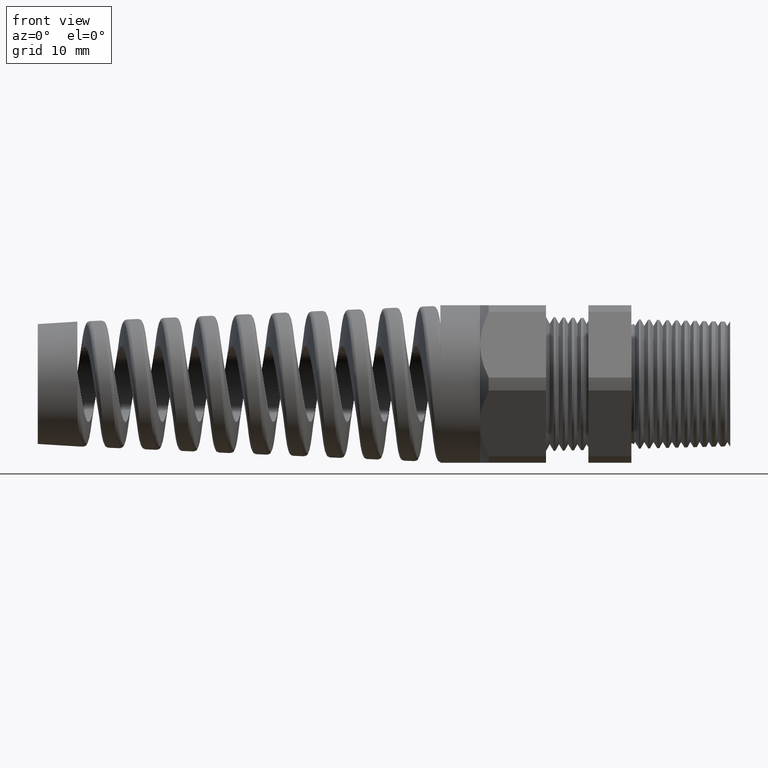
[diagram: clean part render]
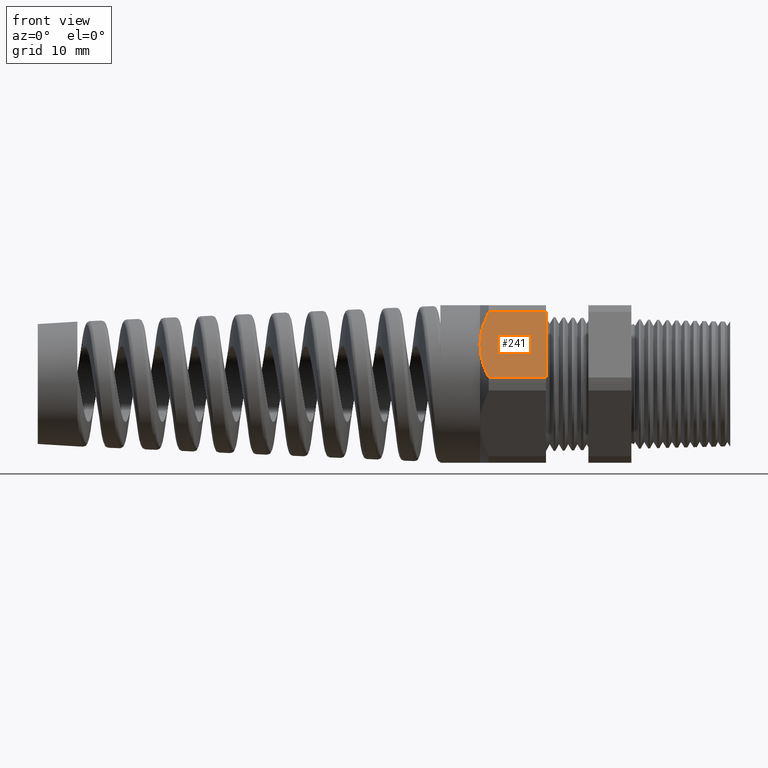
[diagram: same view with one face highlighted and labeled with its STEP entity id]
A machine part, front view. The second image highlights one B-rep face of the part: STEP entity #241.
In plain terms, the highlighted planar face has unit normal (0, -0.866, 0.5).
Its self-contained STEP definition (entity closure, byte-faithful):
#165 = ORIENTED_EDGE ( 'NONE', *, *, #166, .T. ) ;
#166 = EDGE_CURVE ( 'NONE', #249, #335, #1598, .T. ) ;
#167 = ORIENTED_EDGE ( 'NONE', *, *, #449, .F. ) ;
#168 = ORIENTED_EDGE ( 'NONE', *, *, #169, .F. ) ;
#169 = EDGE_CURVE ( 'NONE', #245, #450, #1597, .T. ) ;
#241 = ADVANCED_FACE ( 'NONE', ( #1533 ), #1532, .T. ) ;
#242 = EDGE_LOOP ( 'NONE', ( #243, #247, #165, #167, #168 ) ) ;
#243 = ORIENTED_EDGE ( 'NONE', *, *, #244, .T. ) ;
#244 = EDGE_CURVE ( 'NONE', #245, #246, #1447, .T. ) ;
#245 = VERTEX_POINT ( 'NONE', #1443 ) ;
#246 = VERTEX_POINT ( 'NONE', #1442 ) ;
#247 = ORIENTED_EDGE ( 'NONE', *, *, #248, .T. ) ;
#248 = EDGE_CURVE ( 'NONE', #246, #249, #1629, .T. ) ;
#249 = VERTEX_POINT ( 'NONE', #1628 ) ;
#335 = VERTEX_POINT ( 'NONE', #1783 ) ;
#449 = EDGE_CURVE ( 'NONE', #450, #335, #2107, .T. ) ;
#450 = VERTEX_POINT ( 'NONE', #2099 ) ;
#1442 = CARTESIAN_POINT ( 'NONE',  ( -1.160819685039369700, -0.2938165587564948700, 0.4310947921287048800 ) ) ;
#1443 = CARTESIAN_POINT ( 'NONE',  ( -0.8188188976377951400, -0.2938165587564948700, 0.4310947921287048800 ) ) ;
#1444 = DIRECTION ( 'NONE',  ( -1.000000000000000000, 0.0000000000000000000, 0.0000000000000000000 ) ) ;
#1445 = VECTOR ( 'NONE', #1444, 39.37007874015748100 ) ;
#1446 = CARTESIAN_POINT ( 'NONE',  ( 0.2800000000000001400, -0.2938165587564948700, 0.4310947921287048800 ) ) ;
#1447 = LINE ( 'NONE', #1446, #1445 ) ;
#1448 = DIRECTION ( 'NONE',  ( 0.0000000000000000000, -0.4999999999999995600, -0.8660254037844389300 ) ) ;
#1449 = DIRECTION ( 'NONE',  ( 0.0000000000000000000, -0.8660254037844389300, 0.4999999999999995600 ) ) ;
#1450 = CARTESIAN_POINT ( 'NONE',  ( 0.2800000000000001400, -0.5202473208008777700, 0.03890520787129467300 ) ) ;
#1531 = AXIS2_PLACEMENT_3D ( 'NONE', #1450, #1449, #1448 ) ;
#1532 = PLANE ( 'NONE',  #1531 ) ;
#1533 = FACE_OUTER_BOUND ( 'NONE', #242, .T. ) ;
#1588 = DIRECTION ( 'NONE',  ( 0.0000000000000000000, -0.4999999999999995600, -0.8660254037844389300 ) ) ;
#1589 = VECTOR ( 'NONE', #1588, 39.37007874015748100 ) ;
#1590 = CARTESIAN_POINT ( 'NONE',  ( -1.160819685039369700, -0.5202473208008777700, 0.03890520787129464500 ) ) ;
#1591 = CARTESIAN_POINT ( 'NONE',  ( -1.176473094533777400, -0.5022144712456755300, 0.07013901950615092400 ) ) ;
#1592 = CARTESIAN_POINT ( 'NONE',  ( -1.189577968099953600, -0.4835762490957484200, 0.1024213672325802300 ) ) ;
#1593 = CARTESIAN_POINT ( 'NONE',  ( -1.207574016859126000, -0.4458197490082085300, 0.1678175437001783200 ) ) ;
#1594 = CARTESIAN_POINT ( 'NONE',  ( -1.212519685039369400, -0.4266212606411441400, 0.2010703009804539500 ) ) ;
#1595 = CARTESIAN_POINT ( 'NONE',  ( -1.212519685039370000, -0.4070319397786862400, 0.2349999999999997900 ) ) ;
#1596 = CARTESIAN_POINT ( 'NONE',  ( -0.8188188976377951400, -0.3070319397786865400, 0.4082050807568874400 ) ) ;
#1597 = LINE ( 'NONE', #1596, #1589 ) ;
#1598 = B_SPLINE_CURVE_WITH_KNOTS ( 'NONE', 3,
 ( #1595, #1594, #1593, #1592, #1591, #1590 ),
 .UNSPECIFIED., .F., .F.,
 ( 4, 2, 4 ),
 ( 0.005903107334592316000, 0.008852512982428782300, 0.01180191863026524800 ),
 .UNSPECIFIED. ) ;
#1613 = CARTESIAN_POINT ( 'NONE',  ( -1.212519685039370000, -0.4070319397786862400, 0.2349999999999997900 ) ) ;
#1614 = CARTESIAN_POINT ( 'NONE',  ( -1.212519685039370000, -0.4021312490570419000, 0.2434882453220695600 ) ) ;
#1615 = CARTESIAN_POINT ( 'NONE',  ( -1.212209550361685000, -0.3971857355050538700, 0.2520541260636331400 ) ) ;
#1616 = CARTESIAN_POINT ( 'NONE',  ( -1.210977754654245500, -0.3873598765596236700, 0.2690730129851232600 ) ) ;
#1617 = CARTESIAN_POINT ( 'NONE',  ( -1.210060122264466700, -0.3824845463488702500, 0.2775173326138240500 ) ) ;
#1618 = CARTESIAN_POINT ( 'NONE',  ( -1.206456656993286400, -0.3679645453500631200, 0.3026667120697089100 ) ) ;
#1619 = CARTESIAN_POINT ( 'NONE',  ( -1.202919990934572200, -0.3584258972266240500, 0.3191881352550265900 ) ) ;
#1620 = CARTESIAN_POINT ( 'NONE',  ( -1.189376350521848900, -0.3301755151959553400, 0.3681192322653759100 ) ) ;
#1621 = CARTESIAN_POINT ( 'NONE',  ( -1.176453730715105900, -0.3118271010418954300, 0.3998996178185232300 ) ) ;
#1622 = CARTESIAN_POINT ( 'NONE',  ( -1.160819685039369700, -0.2938165587564948700, 0.4310947921287048800 ) ) ;
#1628 = CARTESIAN_POINT ( 'NONE',  ( -1.212519685039370000, -0.4070319397786862400, 0.2349999999999997900 ) ) ;
#1629 = B_SPLINE_CURVE_WITH_KNOTS ( 'NONE', 3,
 ( #1622, #1621, #1620, #1619, #1618, #1617, #1616, #1615, #1614, #1613 ),
 .UNSPECIFIED., .F., .F.,
 ( 4, 2, 2, 2, 4 ),
 ( 2.483251536690325700E-007, 0.002951677829872994700, 0.004427392582232654900, 0.005165249958412485900, 0.005903107334592316000 ),
 .UNSPECIFIED. ) ;
#1783 = CARTESIAN_POINT ( 'NONE',  ( -1.160819685039369700, -0.5202473208008777700, 0.03890520787129464500 ) ) ;
#2099 = CARTESIAN_POINT ( 'NONE',  ( -0.8188188976377951400, -0.5202473208008777700, 0.03890520787129464500 ) ) ;
#2100 = DIRECTION ( 'NONE',  ( -1.000000000000000000, 0.0000000000000000000, 0.0000000000000000000 ) ) ;
#2101 = VECTOR ( 'NONE', #2100, 39.37007874015748100 ) ;
#2102 = CARTESIAN_POINT ( 'NONE',  ( 0.2800000000000001400, -0.5202473208008777700, 0.03890520787129464500 ) ) ;
#2107 = LINE ( 'NONE', #2102, #2101 ) ;